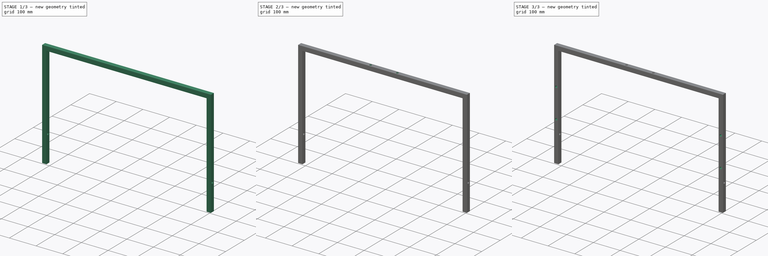
[diagram: build sequence overview — one tinted view per stage of 3, left to right]
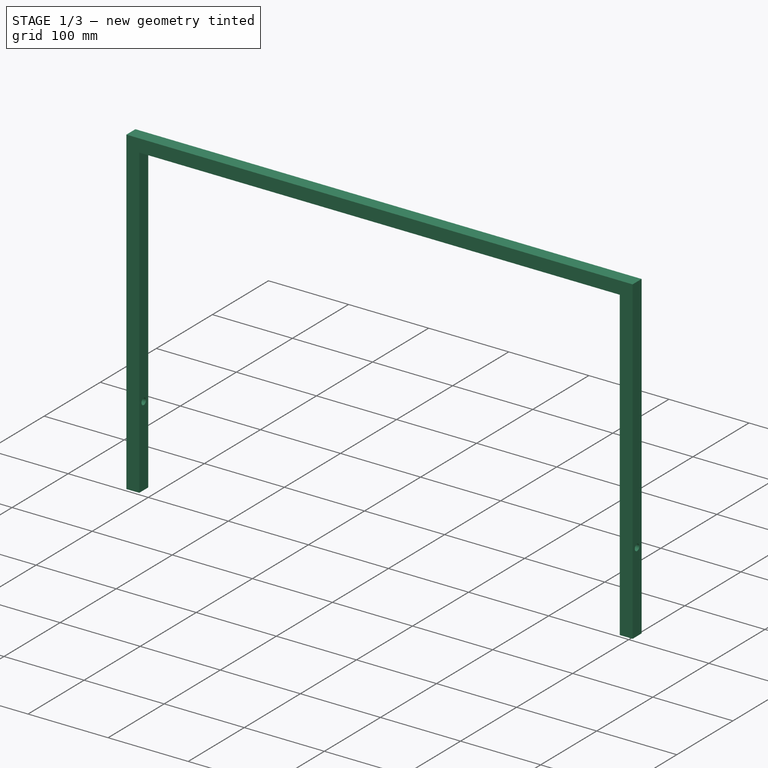
[diagram: stage 1 of 3 — iso view after this stage's code; geometry added in this stage tinted green]
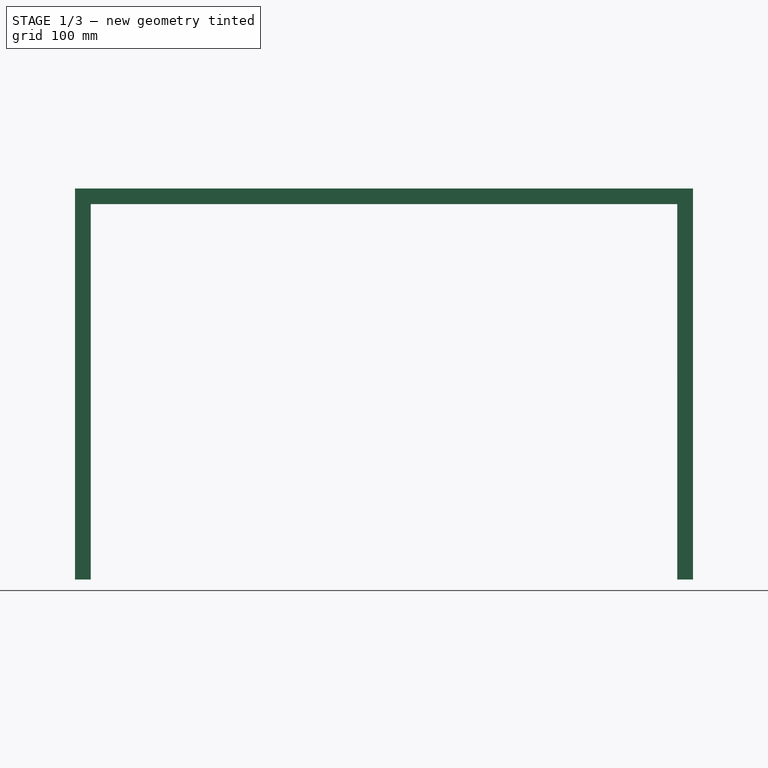
[diagram: stage 1 of 3 — front view after this stage's code; geometry added in this stage tinted green]
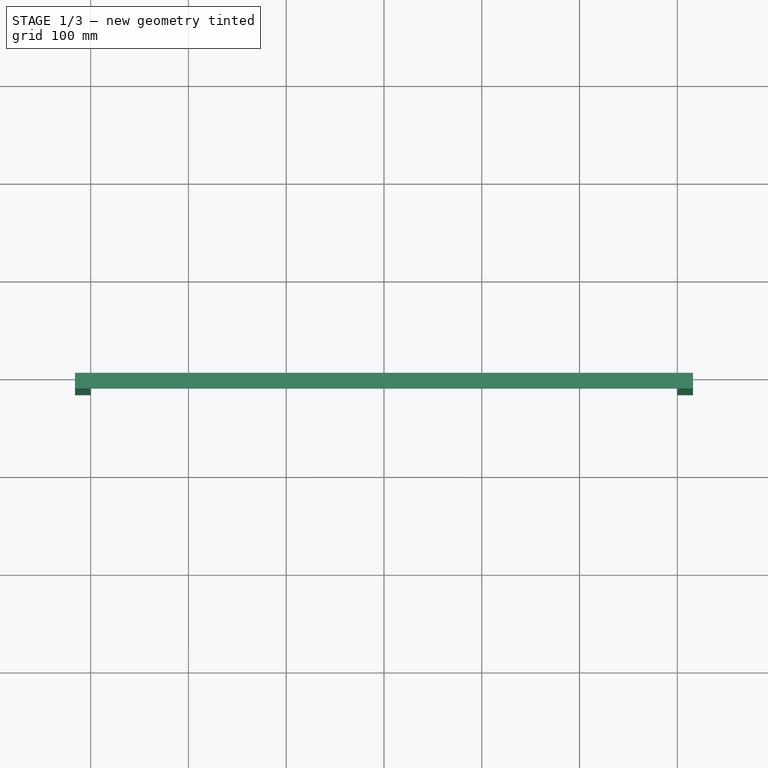
[diagram: stage 1 of 3 — top view after this stage's code; geometry added in this stage tinted green]
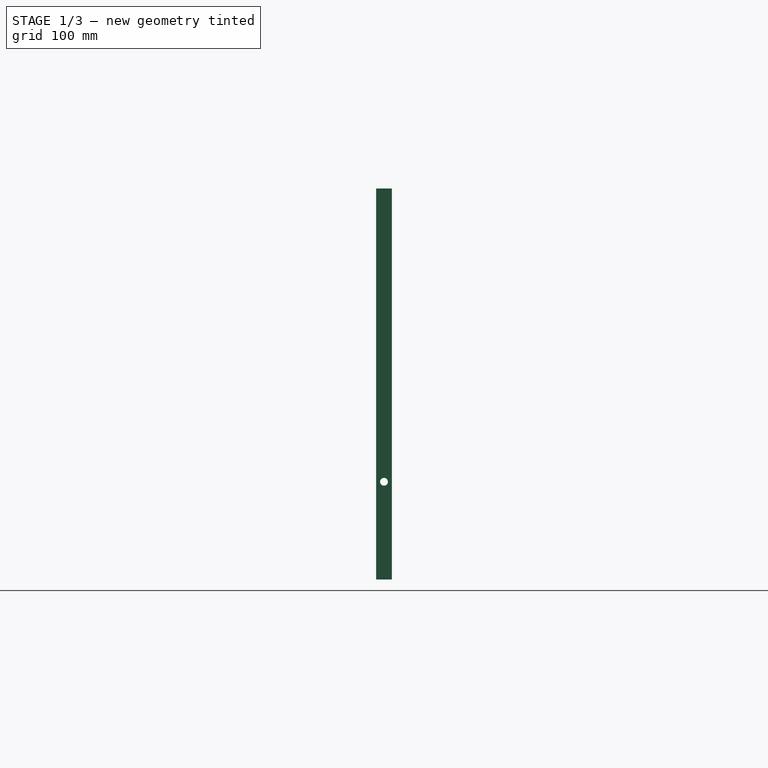
[diagram: stage 1 of 3 — right view after this stage's code; geometry added in this stage tinted green]
FCSTD DOCUMENT  (FreeCAD 1.0R39285 (Git))
Label: Supporting-Frame
License: All rights reserved
objects: Sketcher::SketchObject×5, PartDesign::Pocket×4, PartDesign::Pad×1, PartDesign::Body×1
note: 26 computed .brp shape members not serialized (recipe doc carries the construction recipe); baked Part::Feature solids carry a one-line shape summary decoded from their .brp

FEATURE [Sketcher::SketchObject] Sketch001
  ArcFitTolerance = 1e-06
  AttachmentSupport = -> [XZ_Plane]
  FullyConstrained = true
  MakeInternals = false
  MapMode = 5
  Placement = pos=(0,0,0) rot=(1,0,0;1.5708rad)
  sketch-geometry (12):
    g0: LineSegment [constr] StartX=0 StartY=0 StartZ=0 EndX=-300 EndY=0 EndZ=0
    g1: LineSegment [constr] StartX=0 StartY=0 StartZ=0 EndX=300 EndY=0 EndZ=0
    g2: LineSegment StartX=300 StartY=0 StartZ=0 EndX=300 EndY=-100 EndZ=0
    g3: LineSegment StartX=300 StartY=-100 StartZ=0 EndX=316 EndY=-100 EndZ=0
    g4: LineSegment StartX=316 StartY=-100 StartZ=0 EndX=316 EndY=300 EndZ=0
    g5: LineSegment StartX=316 StartY=300 StartZ=0 EndX=-316 EndY=300 EndZ=0
    g6: LineSegment StartX=-316 StartY=300 StartZ=0 EndX=-316 EndY=-100 EndZ=0
    g7: LineSegment StartX=-316 StartY=-100 StartZ=0 EndX=-300 EndY=-100 EndZ=0
    g8: LineSegment StartX=-300 StartY=-100 StartZ=0 EndX=-300 EndY=0 EndZ=0
    g9: LineSegment StartX=-300 StartY=0 StartZ=0 EndX=-300 EndY=284 EndZ=0
    g10: LineSegment StartX=300 StartY=0 StartZ=0 EndX=300 EndY=284 EndZ=0
    g11: LineSegment StartX=300 StartY=284 StartZ=0 EndX=-300 EndY=284 EndZ=0
  constraints (35):
    c: Distance(g0) = 300
    c: Coincident(g0,g-1)
    c: Horizontal(g0)
    c: Distance(g1) = 300
    c: Coincident(g1,g0)
    c: PointOnObject(g1,g-1)
    c: Distance(g2) = 100
    c: Coincident(g2,g1)
    c: Vertical(g2)
    c: Distance(g3) = 16
    c: Coincident(g3,g2)
    c: Horizontal(g3)
    c: Distance(g4) = 400
    c: Coincident(g4,g3)
    c: Vertical(g4)
    c: Distance(g5) = 632
    c: Coincident(g5,g4)
    c: Horizontal(g5)
    c: Distance(g6) = 400
    c: Coincident(g6,g5)
    c: Vertical(g6)
    c: Distance(g7) = 16
    c: Coincident(g7,g6)
    c: Horizontal(g7)
    c: Coincident(g8,g7)
    c: Coincident(g8,g0)
    c: Coincident(g9,g0)
    c: Vertical(g9)
    c: Coincident(g10,g1)
    c: Vertical(g10)
    c: Horizontal(g11)
    c: PointOnObject(g9,g11)
    c: Coincident(g10,g11)
    c: DistanceY(g9,g5) = 16
    c: DistanceX(g11,g11) = 600
FEATURE [PartDesign::Pad] Pad
  Direction = (0,-1,2e-16)
  Length = 16
  Length2 = 10
  Placement = pos=(0,0,0) rot=(1,0,0;1.5708rad)
  Profile = -> Sketch001
  ReferenceAxis = -> Sketch001 [N_Axis]
  Refine = true
  Suppressed = false
  Type = 0
FEATURE [Sketcher::SketchObject] Sketch
  ArcFitTolerance = 1e-06
  AttachmentSupport = -> [Pad]
  FullyConstrained = true
  MakeInternals = false
  MapMode = 5
  Placement = pos=(-316,0,0) rot=(0.707107,0,-0.707107;3.14159rad)
  sketch-geometry (2):
    g0: LineSegment [constr] StartX=0 StartY=0 StartZ=0 EndX=0 EndY=8 EndZ=0
    g1: Circle CenterX=0 CenterY=8 CenterZ=0 NormalX=0 NormalY=0 NormalZ=1 AngleXU=0 Radius=4
  constraints (5):
    c: Distance(g0) = 8
    c: Coincident(g0,g-1)
    c: PointOnObject(g0,g-2)
    c: Diameter(g1) = 8
    c: Coincident(g1,g0)
FEATURE [PartDesign::Pocket] Pocket
  BaseFeature = -> Pad
  Direction = (1,0,2e-16)
  Length = 5
  Length2 = 5
  Placement = pos=(0,0,0) rot=(1,0,0;1.5708rad)
  Profile = -> Sketch
  ReferenceAxis = -> Sketch [N_Axis]
  Refine = true
  Suppressed = false
  Type = 1
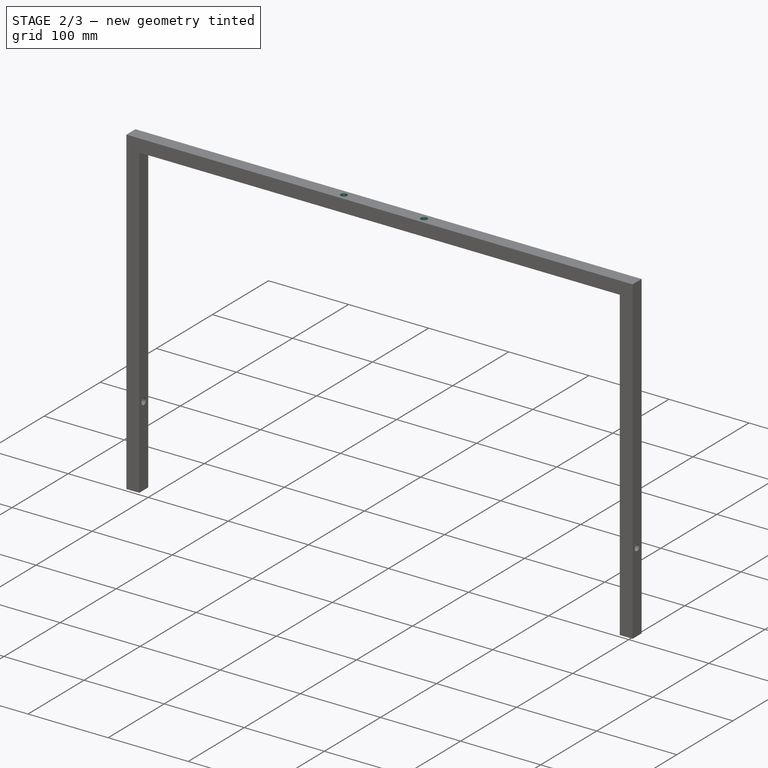
[diagram: stage 2 of 3 — iso view after this stage's code; geometry added in this stage tinted green]
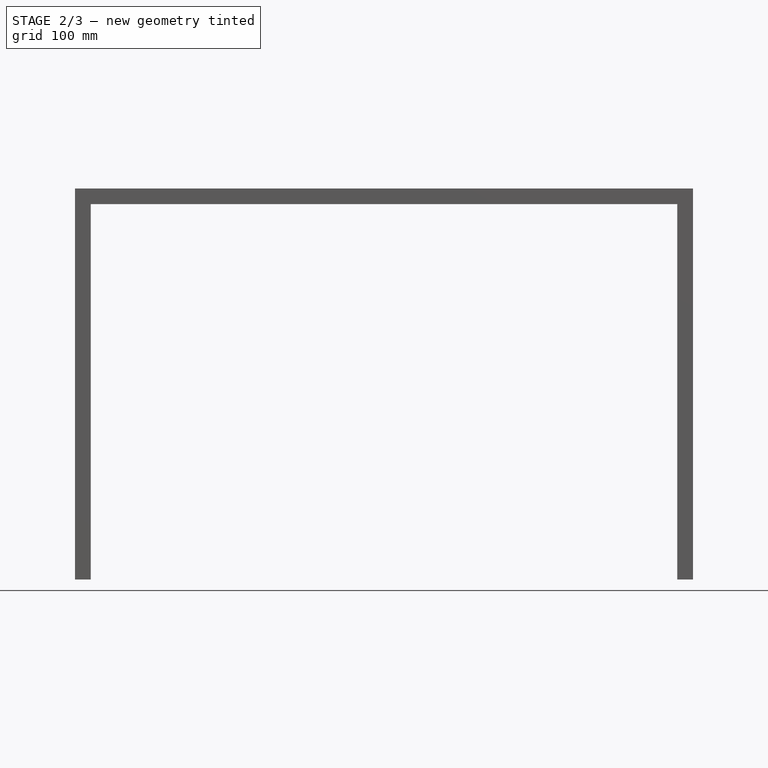
[diagram: stage 2 of 3 — front view after this stage's code; geometry added in this stage tinted green]
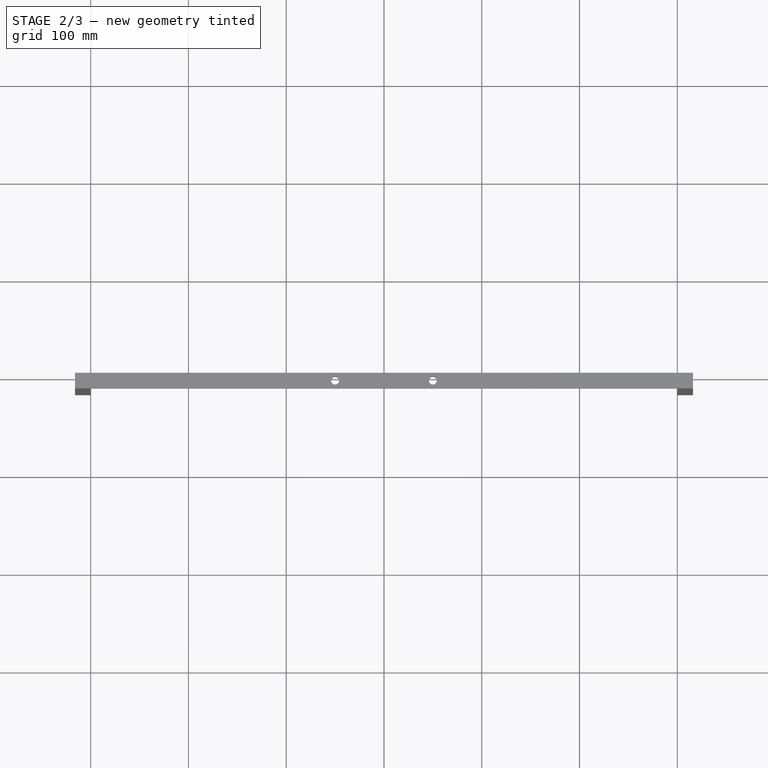
[diagram: stage 2 of 3 — top view after this stage's code; geometry added in this stage tinted green]
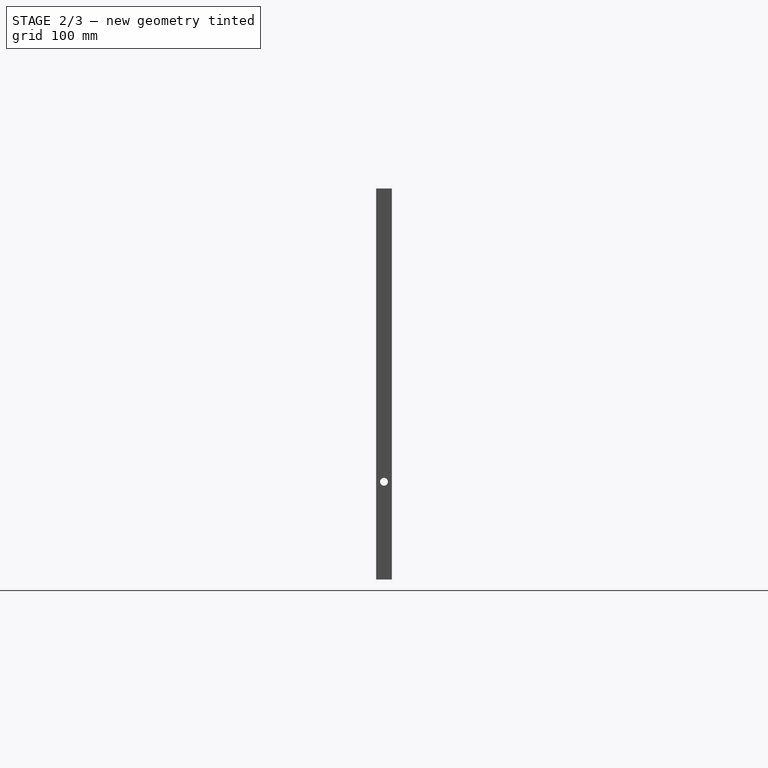
[diagram: stage 2 of 3 — right view after this stage's code; geometry added in this stage tinted green]
FEATURE [Sketcher::SketchObject] Sketch002
  ArcFitTolerance = 1e-06
  AttachmentSupport = -> [Pocket]
  FullyConstrained = true
  MakeInternals = false
  MapMode = 5
  Placement = pos=(0,6.66e-14,300) rot=(0,0,1;3.14159rad)
  sketch-geometry (6):
    g0: LineSegment [constr] StartX=0 StartY=0 StartZ=0 EndX=50 EndY=0 EndZ=0
    g1: LineSegment [constr] StartX=50 StartY=0 StartZ=0 EndX=50 EndY=8 EndZ=0
    g2: LineSegment [constr] StartX=0 StartY=0 StartZ=0 EndX=-50 EndY=0 EndZ=0
    g3: LineSegment [constr] StartX=-50 StartY=0 StartZ=0 EndX=-50 EndY=8 EndZ=0
    g4: Circle CenterX=-50 CenterY=8 CenterZ=0 NormalX=0 NormalY=0 NormalZ=1 AngleXU=0 Radius=4
    g5: Circle CenterX=50 CenterY=8 CenterZ=0 NormalX=0 NormalY=0 NormalZ=1 AngleXU=0 Radius=4
  constraints (16):
    c: Distance(g0) = 50
    c: Coincident(g0,g-1)
    c: PointOnObject(g0,g-1)
    c: Distance(g1) = 8
    c: Coincident(g1,g0)
    c: Vertical(g1)
    c: Distance(g2) = 50
    c: Coincident(g2,g0)
    c: PointOnObject(g2,g-1)
    c: Distance(g3) = 8
    c: Coincident(g3,g2)
    c: Vertical(g3)
    c: Diameter(g4) = 8
    c: Coincident(g4,g3)
    c: Diameter(g5) = 8
    c: Coincident(g5,g1)
FEATURE [PartDesign::Pocket] Pocket001
  BaseFeature = -> Pocket
  Direction = (0,0,-1)
  Length = 5
  Length2 = 5
  Placement = pos=(0,0,0) rot=(1,0,0;1.5708rad)
  Profile = -> Sketch002
  ReferenceAxis = -> Sketch002 [N_Axis]
  Refine = true
  Suppressed = false
  Type = 1
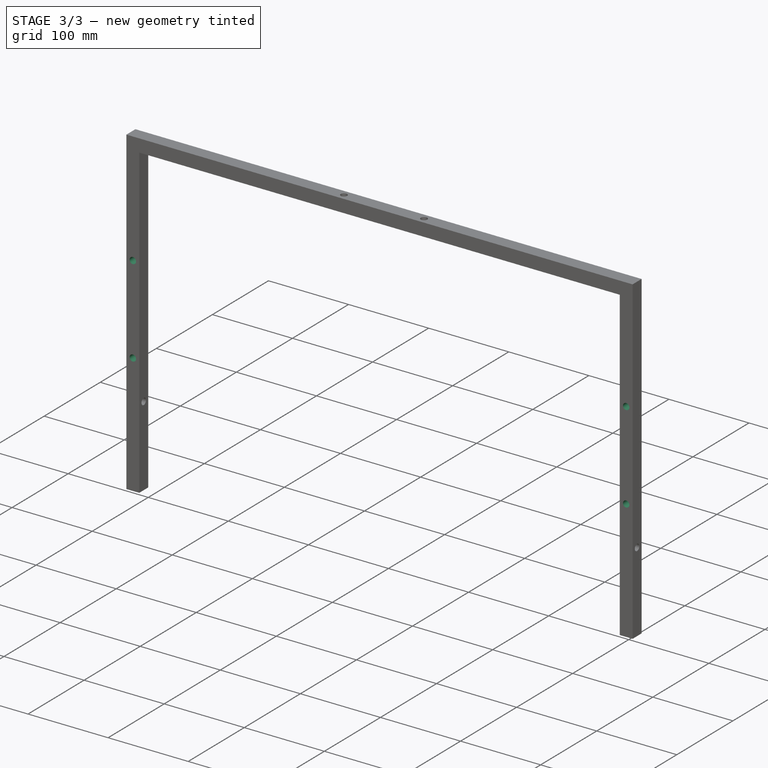
[diagram: stage 3 of 3 — iso view after this stage's code; geometry added in this stage tinted green]
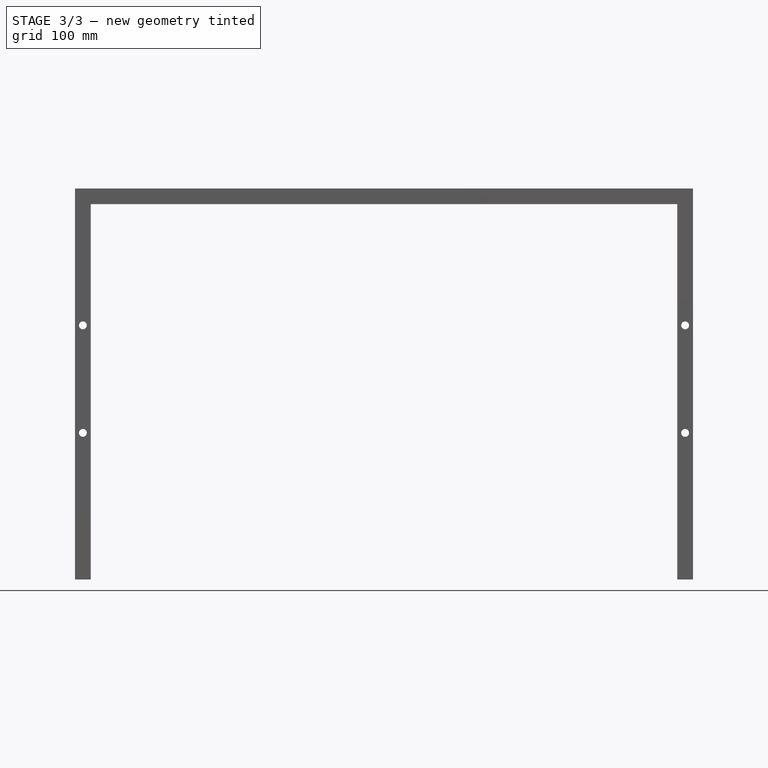
[diagram: stage 3 of 3 — front view after this stage's code; geometry added in this stage tinted green]
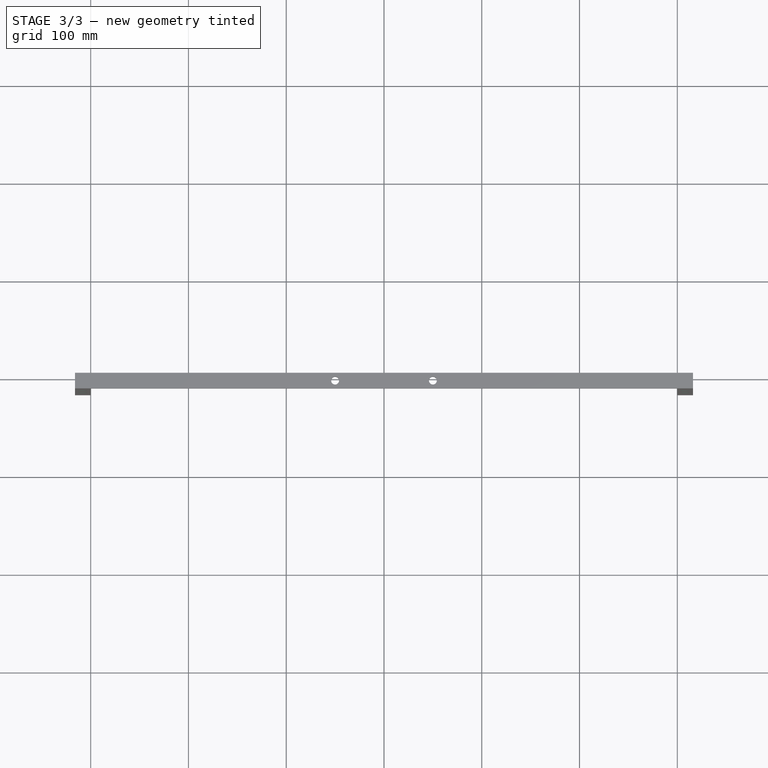
[diagram: stage 3 of 3 — top view after this stage's code; geometry added in this stage tinted green]
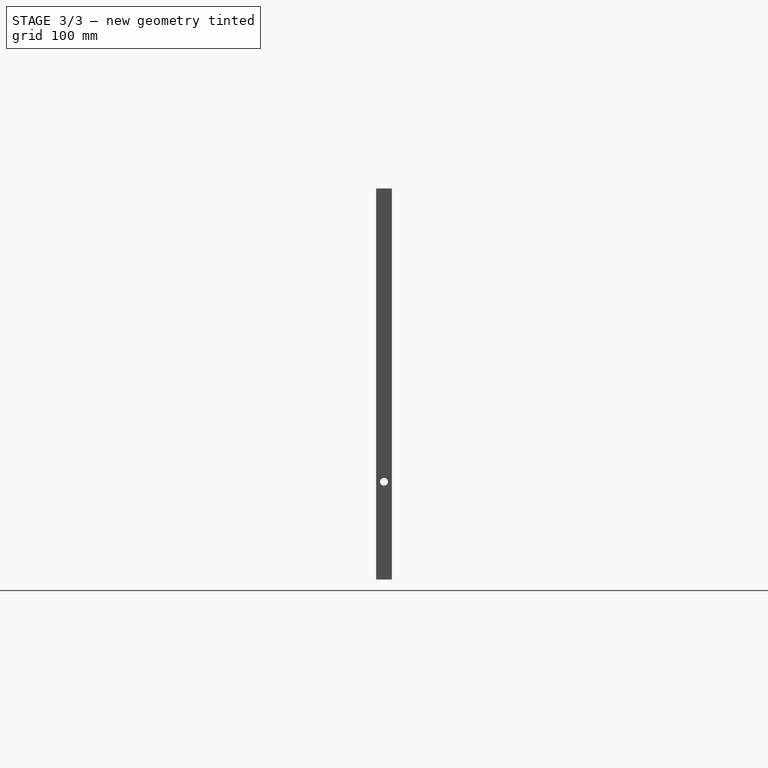
[diagram: stage 3 of 3 — right view after this stage's code; geometry added in this stage tinted green]
FEATURE [Sketcher::SketchObject] Sketch003
  ArcFitTolerance = 1e-06
  AttachmentSupport = -> [Pocket001]
  FullyConstrained = true
  MakeInternals = false
  MapMode = 5
  Placement = pos=(0,3.98e-14,0) rot=(-1,0,0;1.5708rad)
  sketch-geometry (6):
    g0: LineSegment [constr] StartX=0 StartY=0 StartZ=0 EndX=-308 EndY=0 EndZ=0
    g1: LineSegment [constr] StartX=0 StartY=0 StartZ=0 EndX=308 EndY=0 EndZ=0
    g2: LineSegment [constr] StartX=308 StartY=0 StartZ=0 EndX=308 EndY=-50 EndZ=0
    g3: LineSegment [constr] StartX=-308 StartY=0 StartZ=0 EndX=-308 EndY=-50 EndZ=0
    g4: Circle CenterX=308 CenterY=-50 CenterZ=0 NormalX=0 NormalY=0 NormalZ=1 AngleXU=0 Radius=4
    g5: Circle CenterX=-308 CenterY=-50 CenterZ=0 NormalX=0 NormalY=0 NormalZ=1 AngleXU=0 Radius=4
  constraints (16):
    c: Distance(g0) = 308
    c: Coincident(g0,g-1)
    c: Horizontal(g0)
    c: Distance(g1) = 308
    c: Coincident(g1,g0)
    c: PointOnObject(g1,g-1)
    c: Distance(g2) = 50
    c: Coincident(g2,g1)
    c: Vertical(g2)
    c: Distance(g3) = 50
    c: Coincident(g3,g0)
    c: Vertical(g3)
    c: Diameter(g4) = 8
    c: Coincident(g4,g2)
    c: Diameter(g5) = 8
    c: Coincident(g5,g3)
FEATURE [PartDesign::Pocket] Pocket002
  BaseFeature = -> Pocket001
  Direction = (0,-1,-2e-16)
  Length = 5
  Length2 = 5
  Placement = pos=(0,0,0) rot=(1,0,0;1.5708rad)
  Profile = -> Sketch003
  ReferenceAxis = -> Sketch003 [N_Axis]
  Refine = true
  Suppressed = false
  Type = 1
FEATURE [Sketcher::SketchObject] Sketch004
  ArcFitTolerance = 1e-06
  AttachmentSupport = -> [Pocket002]
  FullyConstrained = true
  MakeInternals = false
  MapMode = 5
  Placement = pos=(0,3.98e-14,0) rot=(-1,0,0;1.5708rad)
  sketch-geometry (8):
    g0: LineSegment [constr] StartX=0 StartY=0 StartZ=0 EndX=308 EndY=0 EndZ=0
    g1: LineSegment [constr] StartX=308 StartY=0 StartZ=0 EndX=308 EndY=-150 EndZ=0
    g2: LineSegment [constr] StartX=0 StartY=0 StartZ=0 EndX=-308 EndY=0 EndZ=0
    g3: LineSegment [constr] StartX=308 StartY=-150 StartZ=0 EndX=308 EndY=-160 EndZ=0
    g4: Circle CenterX=308 CenterY=-160 CenterZ=0 NormalX=0 NormalY=0 NormalZ=1 AngleXU=0 Radius=4
    g5: LineSegment [constr] StartX=-308 StartY=0 StartZ=0 EndX=-308 EndY=-150 EndZ=0
    g6: LineSegment [constr] StartX=-308 StartY=-150 StartZ=0 EndX=-308 EndY=-160 EndZ=0
    g7: Circle CenterX=-308 CenterY=-160 CenterZ=0 NormalX=0 NormalY=0 NormalZ=1 AngleXU=0 Radius=4
  constraints (22):
    c: Distance(g0) = 308
    c: Coincident(g0,g-1)
    c: Horizontal(g0)
    c: Distance(g1) = 150
    c: Coincident(g1,g0)
    c: Vertical(g1)
    c: Distance(g2) = 308
    c: Coincident(g2,g0)
    c: PointOnObject(g2,g-1)
    c: Distance(g3) = 10
    c: Coincident(g3,g1)
    c: Vertical(g3)
    c: Diameter(g4) = 8
    c: Coincident(g4,g3)
    c: Distance(g5) = 150
    c: Coincident(g5,g2)
    c: Vertical(g5)
    c: Distance(g6) = 10
    c: Coincident(g6,g5)
    c: Vertical(g6)
    c: Diameter(g7) = 8
    c: Coincident(g7,g6)
FEATURE [PartDesign::Pocket] Pocket003
  BaseFeature = -> Pocket002
  Direction = (0,-1,-2e-16)
  Length = 5
  Length2 = 5
  Placement = pos=(0,0,0) rot=(1,0,0;1.5708rad)
  Profile = -> Sketch004
  ReferenceAxis = -> Sketch004 [N_Axis]
  Refine = true
  Suppressed = false
  Type = 1
FEATURE [PartDesign::Body] Body
  AllowCompound = false
  Group = -> [Sketch001,Pad,Sketch,Pocket,Sketch002,Pocket001,Sketch003,Pocket002,Sketch004,Pocket003]
  Origin = -> Origin
  Tip = -> Pocket003
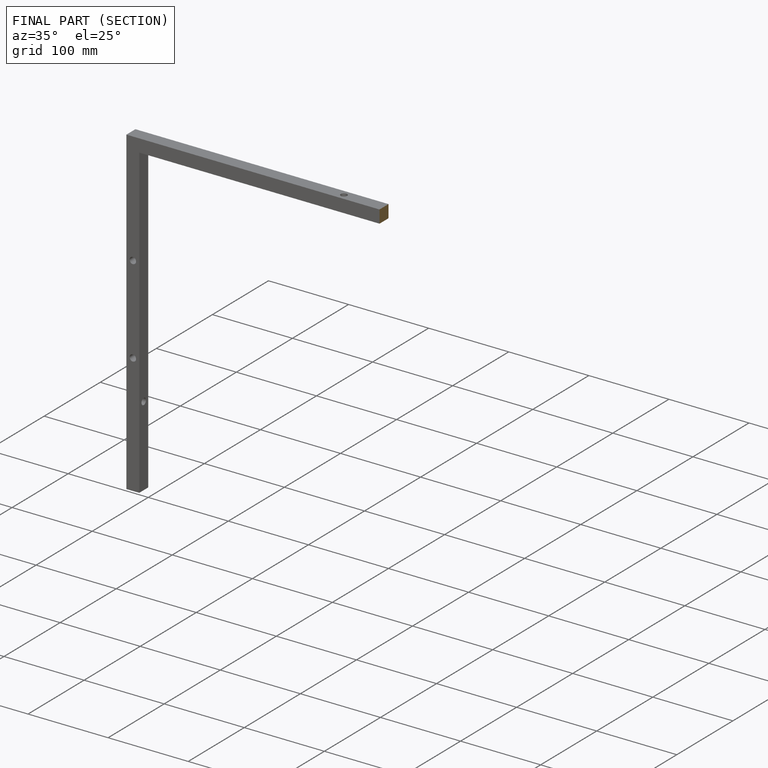
[diagram: finished part — half-section view (interior)]
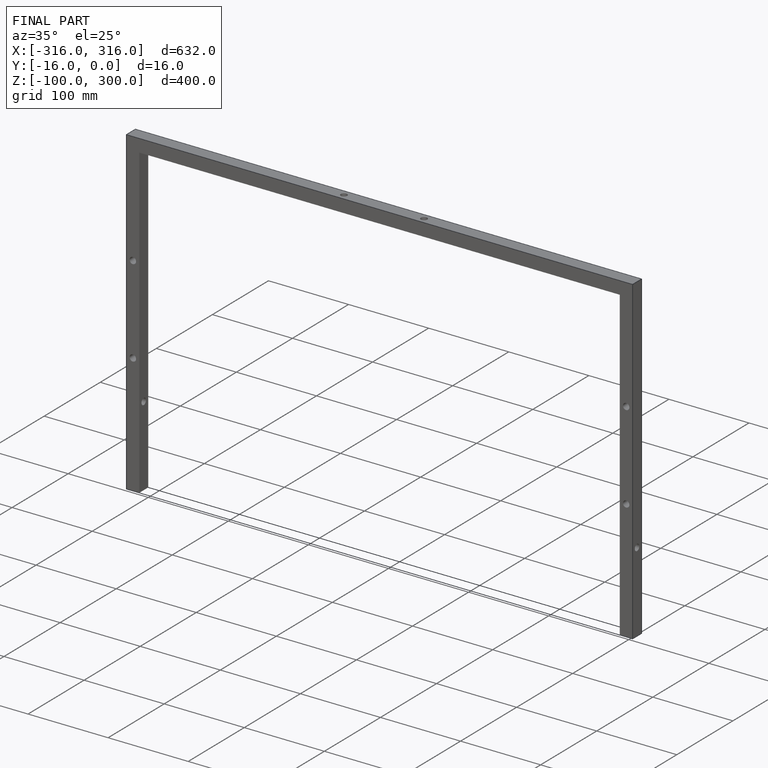
[diagram: finished part — iso view with bounding-box wireframe]
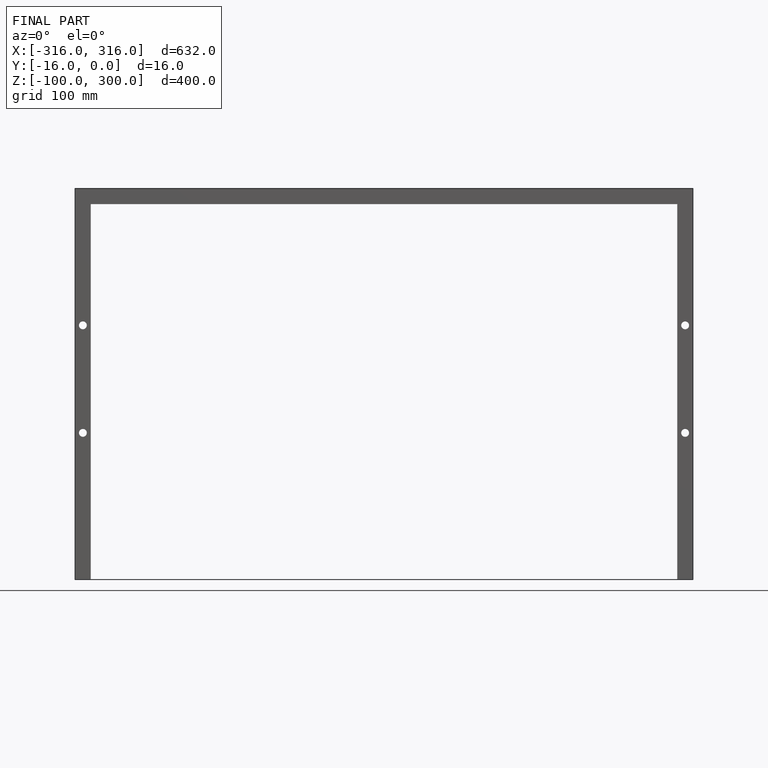
[diagram: finished part — front view with bounding-box wireframe]
